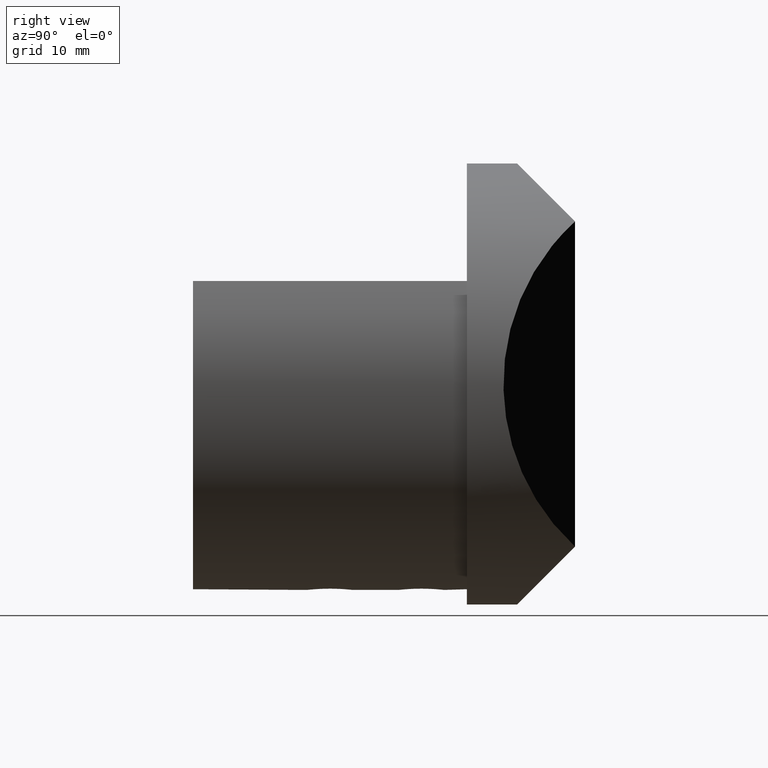
[diagram: clean part render]
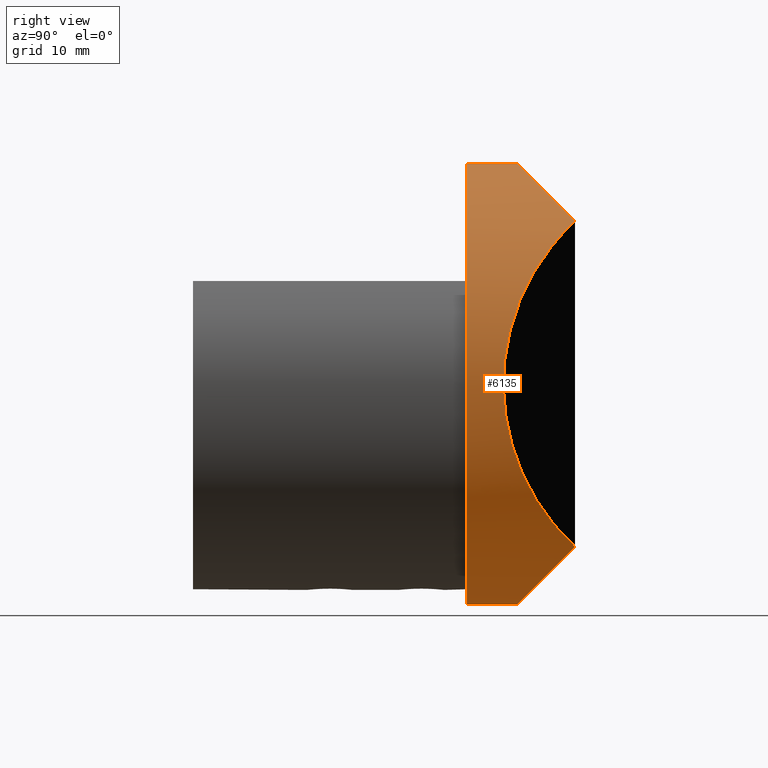
[diagram: same view with one face highlighted and labeled with its STEP entity id]
A machine part, right view. The second image highlights one B-rep face of the part: STEP entity #6135.
In plain terms, the highlighted cylindrical surface (partial cylindrical patch) has radius 24.15 mm, axis along (-0, -1, -0).
Its self-contained STEP definition (entity closure, byte-faithful):
#1628 = CARTESIAN_POINT ( 'NONE',  ( 11.80449852998134100, 7.713593393788234400, 21.93640660621175800 ) ) ;
#1929 = CIRCLE ( 'NONE', #13550, 24.14999999999999900 ) ;
#2761 = VECTOR ( 'NONE', #7587, 1000.000000000000000 ) ;
#3225 = AXIS2_PLACEMENT_3D ( 'NONE', #9463, #4020, #12834 ) ;
#3652 = CYLINDRICAL_SURFACE ( 'NONE', #3225, 24.14999999999999900 ) ;
#3814 = CARTESIAN_POINT ( 'NONE',  ( 6.109797078249222600, 5.499999999999998200, 24.14999999999999100 ) ) ;
#4020 = DIRECTION ( 'NONE',  ( -0.0000000000000000000, -1.000000000000000000, -0.0000000000000000000 ) ) ;
#4098 = EDGE_LOOP ( 'NONE', ( #9641, #4617, #10985, #5456, #7004, #11991 ) ) ;
#4191 = CARTESIAN_POINT ( 'NONE',  ( 27.48497038005763200, 0.6648952993885074400, -7.576302897690179200 ) ) ;
#4385 = CARTESIAN_POINT ( 'NONE',  ( 27.48497038005763200, 0.6648952993885041100, 7.576302897690172100 ) ) ;
#4433 = VERTEX_POINT ( 'NONE', #11586 ) ;
#4617 = ORIENTED_EDGE ( 'NONE', *, *, #12528, .T. ) ;
#5176 = VERTEX_POINT ( 'NONE', #11020 ) ;
#5456 = ORIENTED_EDGE ( 'NONE', *, *, #7371, .F. ) ;
#5591 = EDGE_CURVE ( 'NONE', #4433, #5985, #1929, .T. ) ;
#5699 = EDGE_CURVE ( 'NONE', #12316, #10131, #13017, .T. ) ;
#5871 = CARTESIAN_POINT ( 'NONE',  ( 16.31031575414774400, 11.84000000000000000, -17.81000000000000200 ) ) ;
#5972 = CARTESIAN_POINT ( 'NONE',  ( 16.31031575414774400, 11.84000000000000000, 17.80999999999999200 ) ) ;
#5985 = VERTEX_POINT ( 'NONE', #13371 ) ;
#6064 = DIRECTION ( 'NONE',  ( 0.0000000000000000000, 1.000000000000000000, 0.0000000000000000000 ) ) ;
#6135 = ADVANCED_FACE ( 'NONE', ( #7375 ), #3652, .T. ) ;
#6512 = LINE ( 'NONE', #13024, #2761 ) ;
#6970 =( BOUNDED_CURVE ( )  B_SPLINE_CURVE ( 3, ( #8624, #4191, #4385, #9773 ),
 .UNSPECIFIED., .F., .T. ) 
 B_SPLINE_CURVE_WITH_KNOTS ( ( 4, 4 ),
 ( 5.453862590081278900, 7.112508024277893500 ),
 .UNSPECIFIED. ) 
 CURVE ( )  GEOMETRIC_REPRESENTATION_ITEM ( )  RATIONAL_B_SPLINE_CURVE ( ( 1.000000000000000000, 0.7835835956976602300, 0.7835835956976602300, 1.000000000000000000 ) ) 
 REPRESENTATION_ITEM ( '' )  );
#7004 = ORIENTED_EDGE ( 'NONE', *, *, #7673, .T. ) ;
#7126 = CARTESIAN_POINT ( 'NONE',  ( 2.957522019940857900E-015, 5.499999999999998200, 24.14999999999999900 ) ) ;
#7371 = EDGE_CURVE ( 'NONE', #5176, #5985, #6512, .T. ) ;
#7375 = FACE_OUTER_BOUND ( 'NONE', #4098, .T. ) ;
#7587 = DIRECTION ( 'NONE',  ( -0.0000000000000000000, -1.000000000000000000, -0.0000000000000000000 ) ) ;
#7669 = DIRECTION ( 'NONE',  ( -0.0000000000000000000, -1.000000000000000000, -0.0000000000000000000 ) ) ;
#7673 = EDGE_CURVE ( 'NONE', #5176, #11032, #13626, .T. ) ;
#7926 = CARTESIAN_POINT ( 'NONE',  ( 2.957522019940857900E-015, 5.499999999999998200, 24.14999999999999900 ) ) ;
#8624 = CARTESIAN_POINT ( 'NONE',  ( 16.31031575414774400, 11.84000000000000000, -17.81000000000000200 ) ) ;
#9303 = CARTESIAN_POINT ( 'NONE',  ( 0.0000000000000000000, 0.0000000000000000000, 0.0000000000000000000 ) ) ;
#9325 = CARTESIAN_POINT ( 'NONE',  ( 0.0000000000000000000, 5.500000000000005300, -24.14999999999999900 ) ) ;
#9463 = CARTESIAN_POINT ( 'NONE',  ( 0.0000000000000000000, 15.00000000000000000, 0.0000000000000000000 ) ) ;
#9641 = ORIENTED_EDGE ( 'NONE', *, *, #5699, .T. ) ;
#9773 = CARTESIAN_POINT ( 'NONE',  ( 16.31031575414774400, 11.84000000000000000, 17.80999999999999200 ) ) ;
#10131 = VERTEX_POINT ( 'NONE', #7926 ) ;
#10216 = VECTOR ( 'NONE', #7669, 1000.000000000000000 ) ;
#10380 = CARTESIAN_POINT ( 'NONE',  ( 6.109797078249224400, 5.499999999999998200, -24.14999999999999900 ) ) ;
#10668 = CARTESIAN_POINT ( 'NONE',  ( 16.31031575414774400, 11.84000000000000000, -17.81000000000000200 ) ) ;
#10985 = ORIENTED_EDGE ( 'NONE', *, *, #5591, .T. ) ;
#11020 = CARTESIAN_POINT ( 'NONE',  ( 0.0000000000000000000, 5.500000000000005300, -24.14999999999999900 ) ) ;
#11032 = VERTEX_POINT ( 'NONE', #5871 ) ;
#11364 = CARTESIAN_POINT ( 'NONE',  ( 16.31031575414774400, 11.84000000000000000, 17.80999999999999200 ) ) ;
#11586 = CARTESIAN_POINT ( 'NONE',  ( 2.957522019940857900E-015, 0.0000000000000000000, 24.14999999999999900 ) ) ;
#11589 = EDGE_CURVE ( 'NONE', #11032, #12316, #6970, .T. ) ;
#11991 = ORIENTED_EDGE ( 'NONE', *, *, #11589, .T. ) ;
#12316 = VERTEX_POINT ( 'NONE', #5972 ) ;
#12433 = LINE ( 'NONE', #13150, #10216 ) ;
#12528 = EDGE_CURVE ( 'NONE', #10131, #4433, #12433, .T. ) ;
#12585 = DIRECTION ( 'NONE',  ( 0.0000000000000000000, 0.0000000000000000000, 1.000000000000000000 ) ) ;
#12754 = CARTESIAN_POINT ( 'NONE',  ( 11.80449852998133400, 7.713593393788234400, -21.93640660621176900 ) ) ;
#12834 = DIRECTION ( 'NONE',  ( 0.0000000000000000000, 0.0000000000000000000, -1.000000000000000000 ) ) ;
#13017 =( BOUNDED_CURVE ( )  B_SPLINE_CURVE ( 3, ( #11364, #1628, #3814, #7126 ),
 .UNSPECIFIED., .F., .F. ) 
 B_SPLINE_CURVE_WITH_KNOTS ( ( 4, 4 ),
 ( 5.541711697482997000, 6.283185307179586200 ),
 .UNSPECIFIED. ) 
 CURVE ( )  GEOMETRIC_REPRESENTATION_ITEM ( )  RATIONAL_B_SPLINE_CURVE ( ( 1.000000000000000000, 0.9547071017033889100, 0.9547071017033889100, 1.000000000000000000 ) ) 
 REPRESENTATION_ITEM ( '' )  );
#13024 = CARTESIAN_POINT ( 'NONE',  ( 0.0000000000000000000, 15.00000000000000000, -24.14999999999999900 ) ) ;
#13150 = CARTESIAN_POINT ( 'NONE',  ( 2.957522019940857900E-015, 15.00000000000000000, 24.14999999999999900 ) ) ;
#13371 = CARTESIAN_POINT ( 'NONE',  ( 0.0000000000000000000, 0.0000000000000000000, -24.14999999999999900 ) ) ;
#13550 = AXIS2_PLACEMENT_3D ( 'NONE', #9303, #6064, #12585 ) ;
#13626 =( BOUNDED_CURVE ( )  B_SPLINE_CURVE ( 3, ( #9325, #10380, #12754, #10668 ),
 .UNSPECIFIED., .F., .F. ) 
 B_SPLINE_CURVE_WITH_KNOTS ( ( 4, 4 ),
 ( 0.0000000000000000000, 0.7414736096965893800 ),
 .UNSPECIFIED. ) 
 CURVE ( )  GEOMETRIC_REPRESENTATION_ITEM ( )  RATIONAL_B_SPLINE_CURVE ( ( 1.000000000000000000, 0.9547071017033889100, 0.9547071017033889100, 1.000000000000000000 ) ) 
 REPRESENTATION_ITEM ( '' )  );